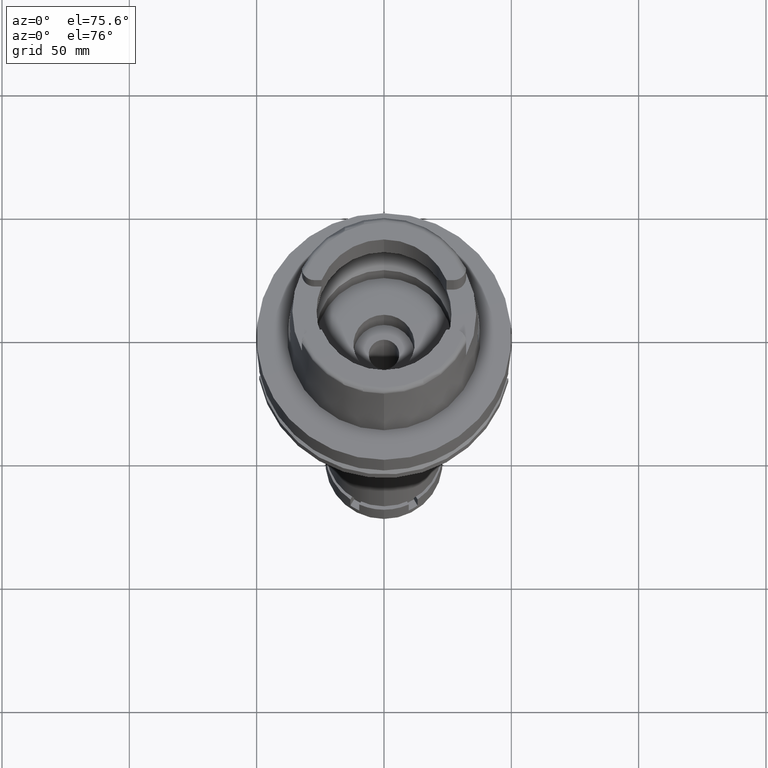
[diagram: clean part render]
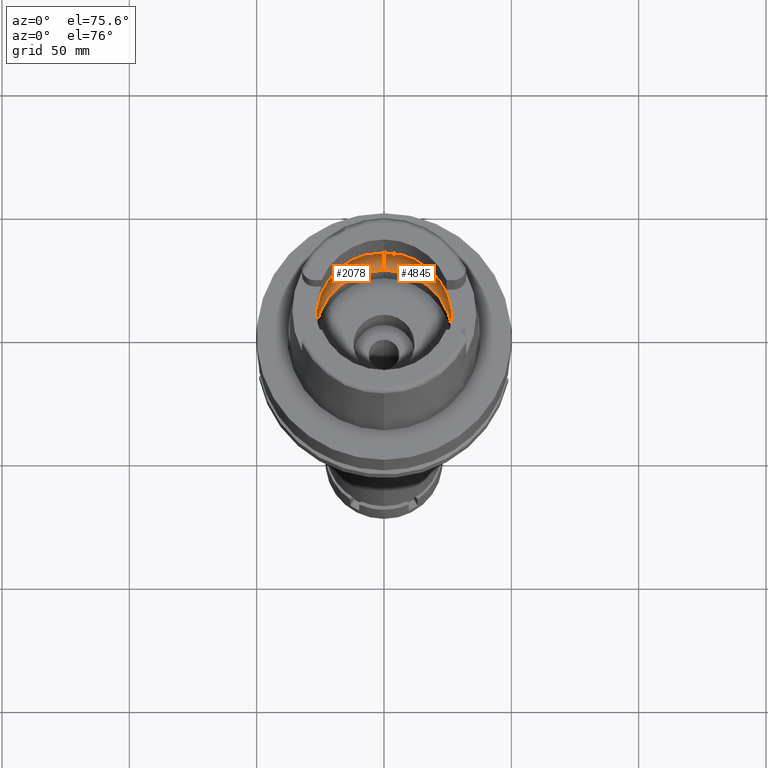
[diagram: same view with one multi-face feature highlighted, each face labeled with its STEP entity id]
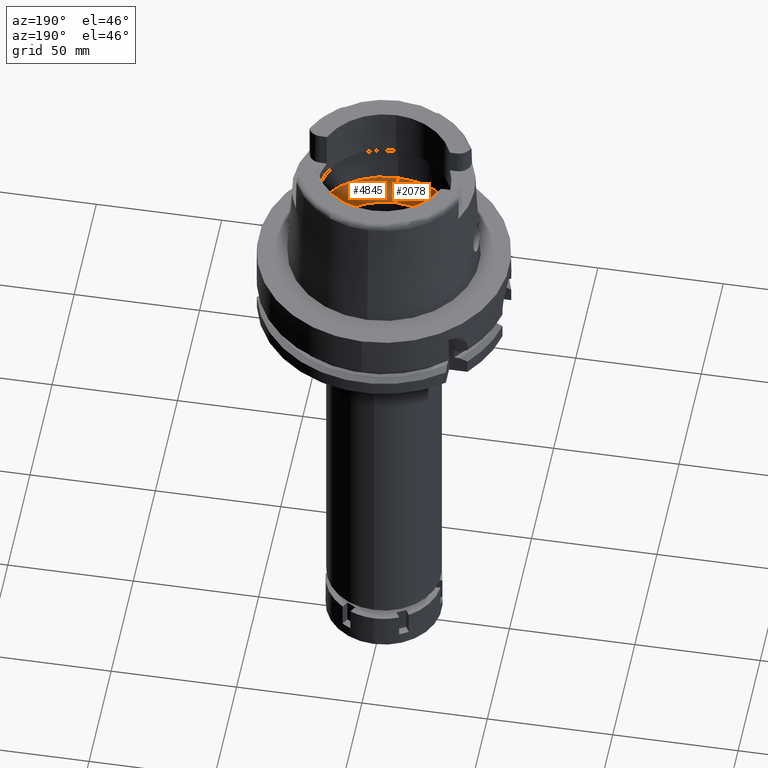
[diagram: same view with one multi-face feature highlighted, each face labeled with its STEP entity id]
A machine part, auxiliary view. The highlighted faces form ONE feature: a constant-radius fillet chain: 2 tangent blend faces with common blend radius 12 mm. The faces share edges in the B-rep.
A second angle (auxiliary view) of the same feature is appended — it is thin or edge-on in the first view.
Their STEP definitions:
[1] entity #2078 (Torus):
#118 = EDGE_CURVE ( 'NONE', #4781, #1972, #5654, .T. ) ;
#278 = B_SPLINE_CURVE_WITH_KNOTS ( 'NONE', 3,
 ( #1646, #3095, #5437, #2087 ),
 .UNSPECIFIED., .F., .F.,
 ( 4, 4 ),
 ( 0.0000000000000000000, 1.000000000000000000 ),
 .UNSPECIFIED. ) ;
#395 = CIRCLE ( 'NONE', #3854, 26.89999999999999858 ) ;
#497 = CARTESIAN_POINT ( 'NONE',  ( 0.0000000000000000000, 0.0000000000000000000, 9.496624327025999790 ) ) ;
#508 = AXIS2_PLACEMENT_3D ( 'NONE', #885, #855, #2742 ) ;
#562 = CARTESIAN_POINT ( 'NONE',  ( 0.0000000000000000000, -31.50000000000000000, 9.496624327025999790 ) ) ;
#602 = CIRCLE ( 'NONE', #1679, 31.49999999999998934 ) ;
#758 = DIRECTION ( 'NONE',  ( 0.0000000000000000000, 0.0000000000000000000, -1.000000000000000000 ) ) ;
#759 = CARTESIAN_POINT ( 'NONE',  ( 0.0000000000000000000, -19.50000000000000000, 9.496624327025999790 ) ) ;
#772 = AXIS2_PLACEMENT_3D ( 'NONE', #5606, #758, #1295 ) ;
#838 = ORIENTED_EDGE ( 'NONE', *, *, #2558, .F. ) ;
#855 = DIRECTION ( 'NONE',  ( 1.000000000000000000, 0.0000000000000000000, 0.0000000000000000000 ) ) ;
#885 = CARTESIAN_POINT ( 'NONE',  ( 0.0000000000000000000, 19.50000000000000000, 9.496624327025999790 ) ) ;
#1046 = EDGE_CURVE ( 'NONE', #4478, #1972, #602, .T. ) ;
#1261 = CARTESIAN_POINT ( 'NONE',  ( -31.48971910754000447, 0.0000000000000000000, 9.000000000000000000 ) ) ;
#1270 = AXIS2_PLACEMENT_3D ( 'NONE', #759, #1652, #2187 ) ;
#1295 = DIRECTION ( 'NONE',  ( 0.0000000000000000000, -1.000000000000000000, 0.0000000000000000000 ) ) ;
#1327 = EDGE_LOOP ( 'NONE', ( #2839, #2241, #4068, #3802, #3340, #838, #2195 ) ) ;
#1330 = EDGE_CURVE ( 'NONE', #2238, #3346, #5424, .T. ) ;
#1420 = CARTESIAN_POINT ( 'NONE',  ( -31.40918884336000616, 2.390158196043999705, 9.496624327025999790 ) ) ;
#1477 = CARTESIAN_POINT ( 'NONE',  ( 0.0000000000000000000, 0.0000000000000000000, 9.496624327025999790 ) ) ;
#1646 = CARTESIAN_POINT ( 'NONE',  ( -31.40918884336000616, -2.390158196043999705, 9.496624327025999790 ) ) ;
#1652 = DIRECTION ( 'NONE',  ( -1.000000000000000000, 0.0000000000000000000, 0.0000000000000000000 ) ) ;
#1679 = AXIS2_PLACEMENT_3D ( 'NONE', #497, #3333, #4278 ) ;
#1874 = CARTESIAN_POINT ( 'NONE',  ( 0.0000000000000000000, 26.89999999999999858, 0.04993178413023000722 ) ) ;
#1972 = VERTEX_POINT ( 'NONE', #5548 ) ;
#2078 = ADVANCED_FACE ( 'NONE', ( #4308 ), #3470, .F. ) ;
#2087 = CARTESIAN_POINT ( 'NONE',  ( -31.48971910754000447, 0.0000000000000000000, 9.000000000000000000 ) ) ;
#2096 = EDGE_CURVE ( 'NONE', #4781, #5753, #395, .T. ) ;
#2187 = DIRECTION ( 'NONE',  ( 0.0000000000000000000, -0.6166666666667049990, -0.7872243785746061429 ) ) ;
#2195 = ORIENTED_EDGE ( 'NONE', *, *, #5113, .F. ) ;
#2236 = CARTESIAN_POINT ( 'NONE',  ( -31.40918884336000616, -2.390158196043999705, 9.496624327025999790 ) ) ;
#2238 = VERTEX_POINT ( 'NONE', #562 ) ;
#2241 = ORIENTED_EDGE ( 'NONE', *, *, #4554, .F. ) ;
#2272 = AXIS2_PLACEMENT_3D ( 'NONE', #1477, #2852, #5707 ) ;
#2321 = CARTESIAN_POINT ( 'NONE',  ( -31.48971910754000447, 0.8697454016366511498, 9.000000000000001776 ) ) ;
#2558 = EDGE_CURVE ( 'NONE', #4420, #4478, #6038, .T. ) ;
#2742 = DIRECTION ( 'NONE',  ( 0.0000000000000000000, 0.6166666666667049990, -0.7872243785746061429 ) ) ;
#2757 = CARTESIAN_POINT ( 'NONE',  ( -31.46287568614665986, 1.684656699878528618, 9.190219624969600432 ) ) ;
#2839 = ORIENTED_EDGE ( 'NONE', *, *, #1330, .F. ) ;
#2852 = DIRECTION ( 'NONE',  ( 0.0000000000000000000, 0.0000000000000000000, 1.000000000000000000 ) ) ;
#2945 = CARTESIAN_POINT ( 'NONE',  ( 0.0000000000000000000, 0.0000000000000000000, 0.04993178413022000134 ) ) ;
#2974 = DIRECTION ( 'NONE',  ( 0.0000000000000000000, 0.0000000000000000000, 1.000000000000000000 ) ) ;
#3095 = CARTESIAN_POINT ( 'NONE',  ( -31.46287568614665986, -1.684656699961271764, 9.190219625005534354 ) ) ;
#3333 = DIRECTION ( 'NONE',  ( 0.0000000000000000000, 0.0000000000000000000, -1.000000000000000000 ) ) ;
#3340 = ORIENTED_EDGE ( 'NONE', *, *, #1046, .F. ) ;
#3346 = VERTEX_POINT ( 'NONE', #2236 ) ;
#3470 = TOROIDAL_SURFACE ( 'NONE', #2272, 19.50000000000000000, 12.00000000000000000 ) ;
#3730 = CARTESIAN_POINT ( 'NONE',  ( -31.48971910754000447, 0.0000000000000000000, 9.000000000000000000 ) ) ;
#3789 = DIRECTION ( 'NONE',  ( 0.0000000000000000000, 1.000000000000000000, 0.0000000000000000000 ) ) ;
#3802 = ORIENTED_EDGE ( 'NONE', *, *, #118, .T. ) ;
#3854 = AXIS2_PLACEMENT_3D ( 'NONE', #2945, #2974, #3789 ) ;
#4068 = ORIENTED_EDGE ( 'NONE', *, *, #2096, .F. ) ;
#4278 = DIRECTION ( 'NONE',  ( -0.9971171061384295209, 0.07587803796965221503, 0.0000000000000000000 ) ) ;
#4308 = FACE_OUTER_BOUND ( 'NONE', #1327, .T. ) ;
#4420 = VERTEX_POINT ( 'NONE', #1261 ) ;
#4478 = VERTEX_POINT ( 'NONE', #4494 ) ;
#4494 = CARTESIAN_POINT ( 'NONE',  ( -31.40918884336000616, 2.390158196043999705, 9.496624327025999790 ) ) ;
#4554 = EDGE_CURVE ( 'NONE', #5753, #2238, #5524, .T. ) ;
#4781 = VERTEX_POINT ( 'NONE', #1874 ) ;
#5113 = EDGE_CURVE ( 'NONE', #3346, #4420, #278, .T. ) ;
#5325 = CARTESIAN_POINT ( 'NONE',  ( 0.0000000000000000000, -26.89999999999999858, 0.04993178413022000134 ) ) ;
#5424 = CIRCLE ( 'NONE', #772, 31.50000000000000000 ) ;
#5437 = CARTESIAN_POINT ( 'NONE',  ( -31.48971910754000447, -0.8697454017268489990, 8.999999999999998224 ) ) ;
#5524 = CIRCLE ( 'NONE', #1270, 11.99999999999999822 ) ;
#5548 = CARTESIAN_POINT ( 'NONE',  ( 0.0000000000000000000, 31.50000000000000000, 9.496624327025999790 ) ) ;
#5606 = CARTESIAN_POINT ( 'NONE',  ( 0.0000000000000000000, 0.0000000000000000000, 9.496624327025999790 ) ) ;
#5654 = CIRCLE ( 'NONE', #508, 11.99999999999999822 ) ;
#5707 = DIRECTION ( 'NONE',  ( 0.0000000000000000000, 1.000000000000000000, 0.0000000000000000000 ) ) ;
#5753 = VERTEX_POINT ( 'NONE', #5325 ) ;
#6038 = B_SPLINE_CURVE_WITH_KNOTS ( 'NONE', 3,
 ( #3730, #2321, #2757, #1420 ),
 .UNSPECIFIED., .F., .F.,
 ( 4, 4 ),
 ( 0.0000000000000000000, 1.000000000000000000 ),
 .UNSPECIFIED. ) ;
[2] entity #4845 (Torus):
#118 = EDGE_CURVE ( 'NONE', #4781, #1972, #5654, .T. ) ;
#175 = ORIENTED_EDGE ( 'NONE', *, *, #1161, .F. ) ;
#184 = DIRECTION ( 'NONE',  ( 0.0000000000000000000, 0.0000000000000000000, -1.000000000000000000 ) ) ;
#379 = CARTESIAN_POINT ( 'NONE',  ( 0.0000000000000000000, 0.0000000000000000000, 9.496624327025999790 ) ) ;
#447 = CIRCLE ( 'NONE', #5092, 26.89999999999999858 ) ;
#488 = AXIS2_PLACEMENT_3D ( 'NONE', #4019, #184, #5904 ) ;
#508 = AXIS2_PLACEMENT_3D ( 'NONE', #885, #855, #2742 ) ;
#548 = CARTESIAN_POINT ( 'NONE',  ( 31.48971910754000447, 0.0000000000000000000, 9.000000000000000000 ) ) ;
#562 = CARTESIAN_POINT ( 'NONE',  ( 0.0000000000000000000, -31.50000000000000000, 9.496624327025999790 ) ) ;
#590 = CARTESIAN_POINT ( 'NONE',  ( 31.48971910753999026, -0.8697454015109682413, 8.999999999999998224 ) ) ;
#723 = ORIENTED_EDGE ( 'NONE', *, *, #2373, .F. ) ;
#759 = CARTESIAN_POINT ( 'NONE',  ( 0.0000000000000000000, -19.50000000000000000, 9.496624327025999790 ) ) ;
#797 = B_SPLINE_CURVE_WITH_KNOTS ( 'NONE', 3,
 ( #5724, #3410, #2937, #548 ),
 .UNSPECIFIED., .F., .F.,
 ( 4, 4 ),
 ( 0.0000000000000000000, 1.000000000000000000 ),
 .UNSPECIFIED. ) ;
#855 = DIRECTION ( 'NONE',  ( 1.000000000000000000, 0.0000000000000000000, 0.0000000000000000000 ) ) ;
#861 = EDGE_CURVE ( 'NONE', #5323, #2238, #5061, .T. ) ;
#885 = CARTESIAN_POINT ( 'NONE',  ( 0.0000000000000000000, 19.50000000000000000, 9.496624327025999790 ) ) ;
#890 = VERTEX_POINT ( 'NONE', #1754 ) ;
#1011 = AXIS2_PLACEMENT_3D ( 'NONE', #379, #4592, #2760 ) ;
#1074 = DIRECTION ( 'NONE',  ( 0.0000000000000000000, 1.000000000000000000, 0.0000000000000000000 ) ) ;
#1075 = AXIS2_PLACEMENT_3D ( 'NONE', #3957, #1472, #1074 ) ;
#1161 = EDGE_CURVE ( 'NONE', #1972, #4729, #4355, .T. ) ;
#1270 = AXIS2_PLACEMENT_3D ( 'NONE', #759, #1652, #2187 ) ;
#1472 = DIRECTION ( 'NONE',  ( 0.0000000000000000000, 0.0000000000000000000, 1.000000000000000000 ) ) ;
#1545 = ORIENTED_EDGE ( 'NONE', *, *, #118, .F. ) ;
#1598 = ORIENTED_EDGE ( 'NONE', *, *, #4554, .T. ) ;
#1600 = CARTESIAN_POINT ( 'NONE',  ( 31.40918884336000616, -2.390158196043999705, 9.496624327025999790 ) ) ;
#1652 = DIRECTION ( 'NONE',  ( -1.000000000000000000, 0.0000000000000000000, 0.0000000000000000000 ) ) ;
#1754 = CARTESIAN_POINT ( 'NONE',  ( 31.48971910754000447, 0.0000000000000000000, 9.000000000000000000 ) ) ;
#1874 = CARTESIAN_POINT ( 'NONE',  ( 0.0000000000000000000, 26.89999999999999858, 0.04993178413023000722 ) ) ;
#1972 = VERTEX_POINT ( 'NONE', #5548 ) ;
#2140 = ORIENTED_EDGE ( 'NONE', *, *, #3197, .F. ) ;
#2187 = DIRECTION ( 'NONE',  ( 0.0000000000000000000, -0.6166666666667049990, -0.7872243785746061429 ) ) ;
#2232 = CARTESIAN_POINT ( 'NONE',  ( 31.40918884336000616, -2.390158196043999705, 9.496624327025999790 ) ) ;
#2238 = VERTEX_POINT ( 'NONE', #562 ) ;
#2373 = EDGE_CURVE ( 'NONE', #5753, #4781, #447, .T. ) ;
#2742 = DIRECTION ( 'NONE',  ( 0.0000000000000000000, 0.6166666666667049990, -0.7872243785746061429 ) ) ;
#2760 = DIRECTION ( 'NONE',  ( 0.9971171061384295209, -0.07587803796965221503, 0.0000000000000000000 ) ) ;
#2937 = CARTESIAN_POINT ( 'NONE',  ( 31.48971910753999026, 0.8697454017830318351, 9.000000000000001776 ) ) ;
#3079 = ORIENTED_EDGE ( 'NONE', *, *, #861, .F. ) ;
#3197 = EDGE_CURVE ( 'NONE', #4729, #890, #797, .T. ) ;
#3313 = EDGE_LOOP ( 'NONE', ( #2140, #175, #1545, #723, #1598, #3079, #4710 ) ) ;
#3410 = CARTESIAN_POINT ( 'NONE',  ( 31.46287568614665986, 1.684656700012793440, 9.190219625027912898 ) ) ;
#3469 = TOROIDAL_SURFACE ( 'NONE', #1075, 19.50000000000000000, 12.00000000000000000 ) ;
#3543 = DIRECTION ( 'NONE',  ( 0.0000000000000000000, 0.0000000000000000000, 1.000000000000000000 ) ) ;
#3727 = CARTESIAN_POINT ( 'NONE',  ( 31.40918884336000616, 2.390158196043999705, 9.496624327025999790 ) ) ;
#3957 = CARTESIAN_POINT ( 'NONE',  ( 0.0000000000000000000, 0.0000000000000000000, 9.496624327025999790 ) ) ;
#4019 = CARTESIAN_POINT ( 'NONE',  ( 0.0000000000000000000, 0.0000000000000000000, 9.496624327025999790 ) ) ;
#4093 = CARTESIAN_POINT ( 'NONE',  ( 0.0000000000000000000, 0.0000000000000000000, 0.04993178413023000722 ) ) ;
#4145 = B_SPLINE_CURVE_WITH_KNOTS ( 'NONE', 3,
 ( #5914, #590, #4900, #1600 ),
 .UNSPECIFIED., .F., .F.,
 ( 4, 4 ),
 ( 0.0000000000000000000, 1.000000000000000000 ),
 .UNSPECIFIED. ) ;
#4355 = CIRCLE ( 'NONE', #488, 31.50000000000000000 ) ;
#4465 = DIRECTION ( 'NONE',  ( 0.0000000000000000000, -1.000000000000000000, 0.0000000000000000000 ) ) ;
#4554 = EDGE_CURVE ( 'NONE', #5753, #2238, #5524, .T. ) ;
#4592 = DIRECTION ( 'NONE',  ( 0.0000000000000000000, 0.0000000000000000000, -1.000000000000000000 ) ) ;
#4710 = ORIENTED_EDGE ( 'NONE', *, *, #6051, .F. ) ;
#4729 = VERTEX_POINT ( 'NONE', #3727 ) ;
#4781 = VERTEX_POINT ( 'NONE', #1874 ) ;
#4845 = ADVANCED_FACE ( 'NONE', ( #5317 ), #3469, .F. ) ;
#4900 = CARTESIAN_POINT ( 'NONE',  ( 31.46287568614665986, -1.684656699763259491, 9.190219624919535590 ) ) ;
#5061 = CIRCLE ( 'NONE', #1011, 31.49999999999998934 ) ;
#5092 = AXIS2_PLACEMENT_3D ( 'NONE', #4093, #3543, #4465 ) ;
#5317 = FACE_OUTER_BOUND ( 'NONE', #3313, .T. ) ;
#5323 = VERTEX_POINT ( 'NONE', #2232 ) ;
#5325 = CARTESIAN_POINT ( 'NONE',  ( 0.0000000000000000000, -26.89999999999999858, 0.04993178413022000134 ) ) ;
#5524 = CIRCLE ( 'NONE', #1270, 11.99999999999999822 ) ;
#5548 = CARTESIAN_POINT ( 'NONE',  ( 0.0000000000000000000, 31.50000000000000000, 9.496624327025999790 ) ) ;
#5654 = CIRCLE ( 'NONE', #508, 11.99999999999999822 ) ;
#5724 = CARTESIAN_POINT ( 'NONE',  ( 31.40918884336000616, 2.390158196043999705, 9.496624327025999790 ) ) ;
#5753 = VERTEX_POINT ( 'NONE', #5325 ) ;
#5904 = DIRECTION ( 'NONE',  ( 0.0000000000000000000, 1.000000000000000000, 0.0000000000000000000 ) ) ;
#5914 = CARTESIAN_POINT ( 'NONE',  ( 31.48971910754000447, 0.0000000000000000000, 9.000000000000000000 ) ) ;
#6051 = EDGE_CURVE ( 'NONE', #890, #5323, #4145, .T. ) ;